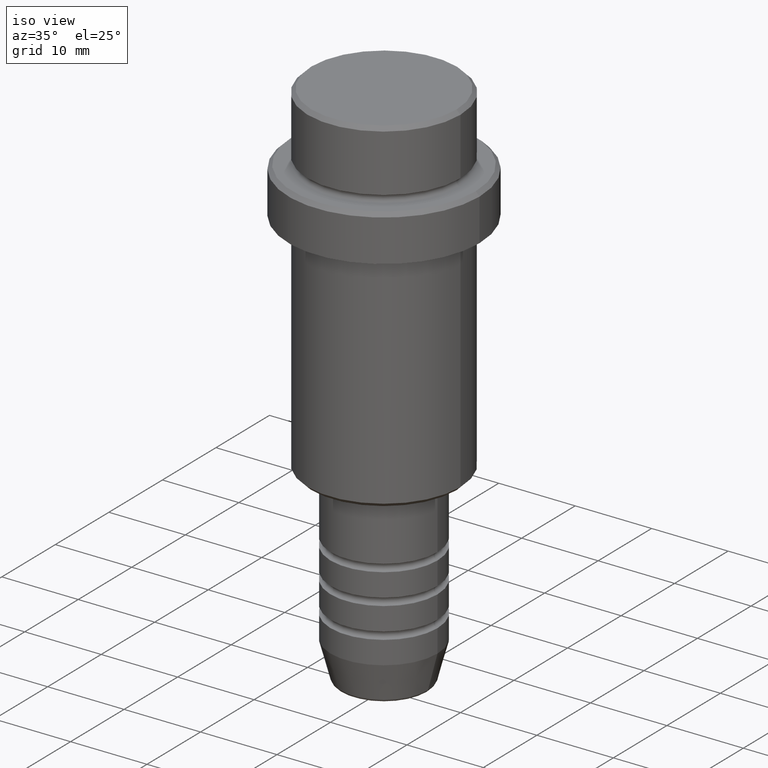
[diagram: clean part render]
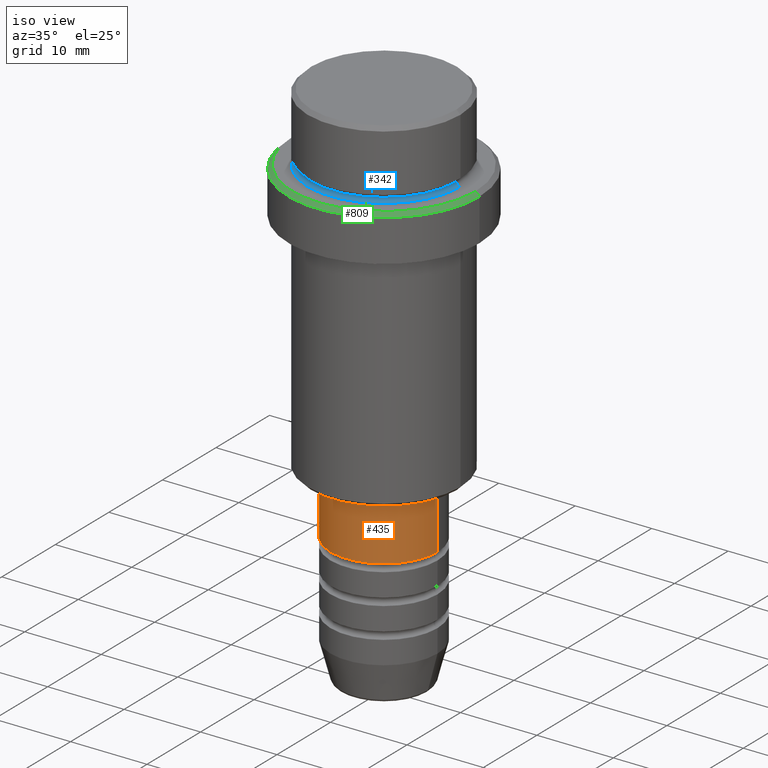
[diagram: same view with three faces highlighted in distinct colors, each labeled with its STEP entity id]
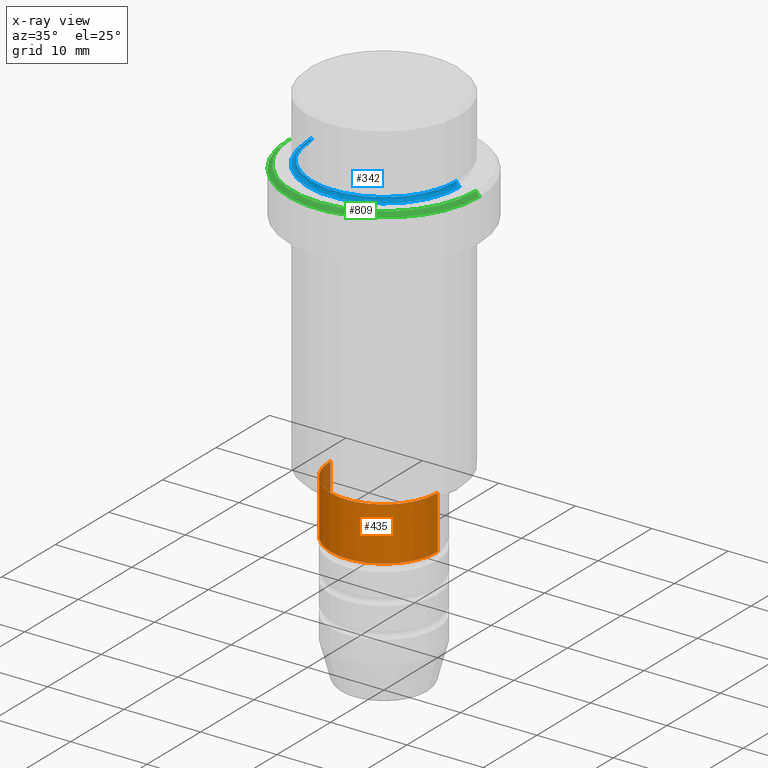
[diagram: x-ray of the same camera — body ghosted, the three highlighted faces saturated]
A machine part, iso view with three faces highlighted in distinct colors.
The next image is the same camera in x-ray (body ghosted, the three faces saturated) — at least one of them is partly hidden behind the body in this view.
Their STEP definitions:

[orange] entity #435 — the highlighted cylindrical surface (partial cylindrical patch) has radius 7 mm, axis along (-0, -0, 1).
#6 = CARTESIAN_POINT ( 'NONE',  ( 0.000000000000000000, 0.000000000000000000, -46.00000000000000000 ) ) ;
#84 = EDGE_CURVE ( 'NONE', #693, #1080, #333, .T. ) ;
#101 = CARTESIAN_POINT ( 'NONE',  ( 7.000000000000000000, 0.000000000000000000, 0.000000000000000000 ) ) ;
#112 = DIRECTION ( 'NONE',  ( -0.000000000000000000, -0.000000000000000000, 1.000000000000000000 ) ) ;
#132 = LINE ( 'NONE', #1022, #1007 ) ;
#141 = AXIS2_PLACEMENT_3D ( 'NONE', #836, #1110, #236 ) ;
#151 = EDGE_LOOP ( 'NONE', ( #245, #189, #969, #442 ) ) ;
#189 = ORIENTED_EDGE ( 'NONE', *, *, #84, .T. ) ;
#195 = CIRCLE ( 'NONE', #470, 7.000000000000000000 ) ;
#215 = CARTESIAN_POINT ( 'NONE',  ( -7.000000000000000000, 8.572527594031473190E-16, -46.00000000000000000 ) ) ;
#234 = CARTESIAN_POINT ( 'NONE',  ( 0.000000000000000000, 0.000000000000000000, -52.99999999999988631 ) ) ;
#236 = DIRECTION ( 'NONE',  ( 1.000000000000000000, 0.000000000000000000, 0.000000000000000000 ) ) ;
#245 = ORIENTED_EDGE ( 'NONE', *, *, #504, .F. ) ;
#316 = VERTEX_POINT ( 'NONE', #532 ) ;
#331 = VERTEX_POINT ( 'NONE', #215 ) ;
#333 = CIRCLE ( 'NONE', #1144, 7.000000000000000000 ) ;
#435 = ADVANCED_FACE ( 'NONE', ( #1050 ), #493, .T. ) ;
#442 = ORIENTED_EDGE ( 'NONE', *, *, #1331, .F. ) ;
#447 = DIRECTION ( 'NONE',  ( 1.000000000000000000, 0.000000000000000000, 0.000000000000000000 ) ) ;
#470 = AXIS2_PLACEMENT_3D ( 'NONE', #6, #112, #447 ) ;
#493 = CYLINDRICAL_SURFACE ( 'NONE', #141, 7.000000000000000000 ) ;
#504 = EDGE_CURVE ( 'NONE', #693, #331, #132, .T. ) ;
#532 = CARTESIAN_POINT ( 'NONE',  ( 7.000000000000000000, 0.000000000000000000, -46.00000000000000000 ) ) ;
#665 = DIRECTION ( 'NONE',  ( -0.000000000000000000, -0.000000000000000000, 1.000000000000000000 ) ) ;
#693 = VERTEX_POINT ( 'NONE', #949 ) ;
#707 = CARTESIAN_POINT ( 'NONE',  ( 7.000000000000000000, 0.000000000000000000, -52.99999999999988631 ) ) ;
#836 = CARTESIAN_POINT ( 'NONE',  ( 0.000000000000000000, 0.000000000000000000, 0.000000000000000000 ) ) ;
#912 = LINE ( 'NONE', #101, #1033 ) ;
#936 = EDGE_CURVE ( 'NONE', #1080, #316, #912, .T. ) ;
#949 = CARTESIAN_POINT ( 'NONE',  ( -7.000000000000000000, 8.572527594031473190E-16, -52.99999999999988631 ) ) ;
#969 = ORIENTED_EDGE ( 'NONE', *, *, #936, .T. ) ;
#1007 = VECTOR ( 'NONE', #1118, 1000.000000000000000 ) ;
#1022 = CARTESIAN_POINT ( 'NONE',  ( -7.000000000000000000, 8.572527594031473190E-16, 0.000000000000000000 ) ) ;
#1033 = VECTOR ( 'NONE', #1229, 1000.000000000000000 ) ;
#1050 = FACE_OUTER_BOUND ( 'NONE', #151, .T. ) ;
#1080 = VERTEX_POINT ( 'NONE', #707 ) ;
#1110 = DIRECTION ( 'NONE',  ( -0.000000000000000000, -0.000000000000000000, 1.000000000000000000 ) ) ;
#1113 = DIRECTION ( 'NONE',  ( 1.000000000000000000, 0.000000000000000000, 0.000000000000000000 ) ) ;
#1118 = DIRECTION ( 'NONE',  ( -0.000000000000000000, -0.000000000000000000, 1.000000000000000000 ) ) ;
#1144 = AXIS2_PLACEMENT_3D ( 'NONE', #234, #665, #1113 ) ;
#1229 = DIRECTION ( 'NONE',  ( -0.000000000000000000, -0.000000000000000000, 1.000000000000000000 ) ) ;
#1331 = EDGE_CURVE ( 'NONE', #331, #316, #195, .T. ) ;

[blue] entity #342 — the highlighted toroidal blend (fillet) surface has major radius 10 mm and minor (blend) radius 0.5 mm.
#45 = CARTESIAN_POINT ( 'NONE',  ( 9.999999999999994671, 0.000000000000000000, -9.000000000000001776 ) ) ;
#78 = CIRCLE ( 'NONE', #724, 0.5000000000000004441 ) ;
#81 = DIRECTION ( 'NONE',  ( 0.000000000000000000, -1.000000000000000000, 0.000000000000000000 ) ) ;
#83 = ORIENTED_EDGE ( 'NONE', *, *, #1254, .F. ) ;
#150 = AXIS2_PLACEMENT_3D ( 'NONE', #583, #479, #839 ) ;
#232 = DIRECTION ( 'NONE',  ( 0.000000000000000000, 0.000000000000000000, -1.000000000000000000 ) ) ;
#293 = DIRECTION ( 'NONE',  ( 1.000000000000000000, 0.000000000000000000, 0.000000000000000000 ) ) ;
#342 = ADVANCED_FACE ( 'NONE', ( #760 ), #1236, .F. ) ;
#347 = EDGE_CURVE ( 'NONE', #1219, #1079, #825, .T. ) ;
#408 = CIRCLE ( 'NONE', #1214, 9.999999999999994671 ) ;
#479 = DIRECTION ( 'NONE',  ( 1.224646799147353207E-16, 1.000000000000000000, 0.000000000000000000 ) ) ;
#488 = EDGE_CURVE ( 'NONE', #1081, #1239, #408, .T. ) ;
#505 = ORIENTED_EDGE ( 'NONE', *, *, #591, .T. ) ;
#516 = CIRCLE ( 'NONE', #150, 0.5000000000000004441 ) ;
#524 = CARTESIAN_POINT ( 'NONE',  ( 9.999999999999994671, 0.000000000000000000, -8.500000000000000000 ) ) ;
#564 = EDGE_LOOP ( 'NONE', ( #950, #505, #880, #83 ) ) ;
#583 = CARTESIAN_POINT ( 'NONE',  ( -9.999999999999994671, 1.224646799147352665E-15, -8.500000000000000000 ) ) ;
#591 = EDGE_CURVE ( 'NONE', #1219, #1239, #516, .T. ) ;
#603 = AXIS2_PLACEMENT_3D ( 'NONE', #987, #1413, #604 ) ;
#604 = DIRECTION ( 'NONE',  ( 1.000000000000000000, 0.000000000000000000, 0.000000000000000000 ) ) ;
#724 = AXIS2_PLACEMENT_3D ( 'NONE', #524, #81, #978 ) ;
#760 = FACE_OUTER_BOUND ( 'NONE', #564, .T. ) ;
#825 = CIRCLE ( 'NONE', #1412, 9.499999999999994671 ) ;
#839 = DIRECTION ( 'NONE',  ( -1.000000000000000000, 1.224646799147353454E-16, 0.000000000000000000 ) ) ;
#880 = ORIENTED_EDGE ( 'NONE', *, *, #488, .F. ) ;
#885 = CARTESIAN_POINT ( 'NONE',  ( 0.000000000000000000, 0.000000000000000000, -9.000000000000001776 ) ) ;
#950 = ORIENTED_EDGE ( 'NONE', *, *, #347, .F. ) ;
#952 = DIRECTION ( 'NONE',  ( -0.000000000000000000, -0.000000000000000000, 1.000000000000000000 ) ) ;
#978 = DIRECTION ( 'NONE',  ( 0.000000000000000000, 0.000000000000000000, -1.000000000000000000 ) ) ;
#983 = CARTESIAN_POINT ( 'NONE',  ( -9.499999999999994671, 1.194030629168668681E-15, -8.500000000000000000 ) ) ;
#987 = CARTESIAN_POINT ( 'NONE',  ( 0.000000000000000000, 0.000000000000000000, -8.500000000000000000 ) ) ;
#1079 = VERTEX_POINT ( 'NONE', #1250 ) ;
#1081 = VERTEX_POINT ( 'NONE', #45 ) ;
#1214 = AXIS2_PLACEMENT_3D ( 'NONE', #885, #232, #1330 ) ;
#1219 = VERTEX_POINT ( 'NONE', #983 ) ;
#1236 = TOROIDAL_SURFACE ( 'NONE', #603, 9.999999999999994671, 0.5000000000000000000 ) ;
#1239 = VERTEX_POINT ( 'NONE', #1281 ) ;
#1250 = CARTESIAN_POINT ( 'NONE',  ( 9.499999999999994671, 0.000000000000000000, -8.500000000000000000 ) ) ;
#1254 = EDGE_CURVE ( 'NONE', #1079, #1081, #78, .T. ) ;
#1281 = CARTESIAN_POINT ( 'NONE',  ( -9.999999999999994671, 1.224646799147352665E-15, -9.000000000000001776 ) ) ;
#1306 = CARTESIAN_POINT ( 'NONE',  ( 0.000000000000000000, 0.000000000000000000, -8.500000000000000000 ) ) ;
#1330 = DIRECTION ( 'NONE',  ( 1.000000000000000000, 0.000000000000000000, 0.000000000000000000 ) ) ;
#1412 = AXIS2_PLACEMENT_3D ( 'NONE', #1306, #952, #293 ) ;
#1413 = DIRECTION ( 'NONE',  ( -0.000000000000000000, -0.000000000000000000, 1.000000000000000000 ) ) ;

[green] entity #809 — the highlighted conical surface has half-angle 45 deg.
#44 = EDGE_CURVE ( 'NONE', #849, #517, #601, .T. ) ;
#97 = CARTESIAN_POINT ( 'NONE',  ( 0.000000000000000000, 0.000000000000000000, -9.000000000000001776 ) ) ;
#108 = CARTESIAN_POINT ( 'NONE',  ( 12.00000000000000355, 1.500192328955507734E-15, -9.000000000000001776 ) ) ;
#145 = AXIS2_PLACEMENT_3D ( 'NONE', #97, #1107, #1407 ) ;
#224 = VECTOR ( 'NONE', #1108, 1000.000000000000114 ) ;
#318 = FACE_OUTER_BOUND ( 'NONE', #1139, .T. ) ;
#323 = LINE ( 'NONE', #659, #224 ) ;
#384 = CARTESIAN_POINT ( 'NONE',  ( -12.50000000000000000, 1.530808498934191521E-15, -9.500000000000014211 ) ) ;
#401 = DIRECTION ( 'NONE',  ( -1.000000000000000000, 0.000000000000000000, 0.000000000000000000 ) ) ;
#403 = CONICAL_SURFACE ( 'NONE', #1230, 12.00000000000000355, 0.7853981633974327359 ) ;
#430 = ORIENTED_EDGE ( 'NONE', *, *, #499, .F. ) ;
#499 = EDGE_CURVE ( 'NONE', #517, #1225, #1104, .T. ) ;
#517 = VERTEX_POINT ( 'NONE', #108 ) ;
#518 = CARTESIAN_POINT ( 'NONE',  ( 12.50000000000000000, 0.000000000000000000, -9.500000000000014211 ) ) ;
#582 = VECTOR ( 'NONE', #891, 1000.000000000000114 ) ;
#601 = CIRCLE ( 'NONE', #145, 12.00000000000000355 ) ;
#640 = CARTESIAN_POINT ( 'NONE',  ( 0.000000000000000000, 0.000000000000000000, -9.500000000000014211 ) ) ;
#659 = CARTESIAN_POINT ( 'NONE',  ( -12.00000000000000355, 0.000000000000000000, -9.000000000000001776 ) ) ;
#666 = DIRECTION ( 'NONE',  ( 1.000000000000000000, 0.000000000000000000, 0.000000000000000000 ) ) ;
#672 = DIRECTION ( 'NONE',  ( 0.000000000000000000, 0.000000000000000000, -1.000000000000000000 ) ) ;
#677 = CIRCLE ( 'NONE', #826, 12.50000000000000000 ) ;
#758 = CARTESIAN_POINT ( 'NONE',  ( 0.000000000000000000, 0.000000000000000000, -9.000000000000001776 ) ) ;
#809 = ADVANCED_FACE ( 'NONE', ( #318 ), #403, .T. ) ;
#826 = AXIS2_PLACEMENT_3D ( 'NONE', #640, #672, #666 ) ;
#849 = VERTEX_POINT ( 'NONE', #1393 ) ;
#891 = DIRECTION ( 'NONE',  ( 0.7071067811865365815, 8.659560562354799738E-17, -0.7071067811865584529 ) ) ;
#904 = ORIENTED_EDGE ( 'NONE', *, *, #1372, .T. ) ;
#999 = VERTEX_POINT ( 'NONE', #384 ) ;
#1104 = LINE ( 'NONE', #1224, #582 ) ;
#1107 = DIRECTION ( 'NONE',  ( -0.000000000000000000, -0.000000000000000000, 1.000000000000000000 ) ) ;
#1108 = DIRECTION ( 'NONE',  ( -0.7071067811865365815, 0.000000000000000000, -0.7071067811865584529 ) ) ;
#1139 = EDGE_LOOP ( 'NONE', ( #430, #1293, #904, #1400 ) ) ;
#1196 = DIRECTION ( 'NONE',  ( 0.000000000000000000, 0.000000000000000000, -1.000000000000000000 ) ) ;
#1224 = CARTESIAN_POINT ( 'NONE',  ( 12.00000000000000355, 1.469576158976824342E-15, -9.000000000000001776 ) ) ;
#1225 = VERTEX_POINT ( 'NONE', #518 ) ;
#1230 = AXIS2_PLACEMENT_3D ( 'NONE', #758, #1196, #401 ) ;
#1293 = ORIENTED_EDGE ( 'NONE', *, *, #44, .F. ) ;
#1372 = EDGE_CURVE ( 'NONE', #849, #999, #323, .T. ) ;
#1393 = CARTESIAN_POINT ( 'NONE',  ( -12.00000000000000355, 0.000000000000000000, -9.000000000000001776 ) ) ;
#1400 = ORIENTED_EDGE ( 'NONE', *, *, #1415, .F. ) ;
#1407 = DIRECTION ( 'NONE',  ( 1.000000000000000000, 0.000000000000000000, 0.000000000000000000 ) ) ;
#1415 = EDGE_CURVE ( 'NONE', #1225, #999, #677, .T. ) ;